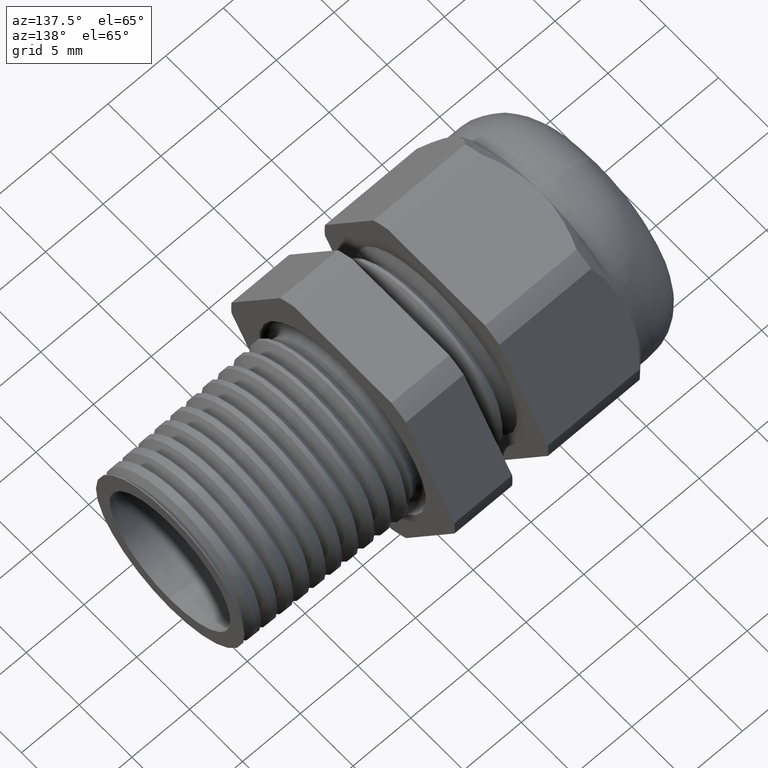
[diagram: clean part render]
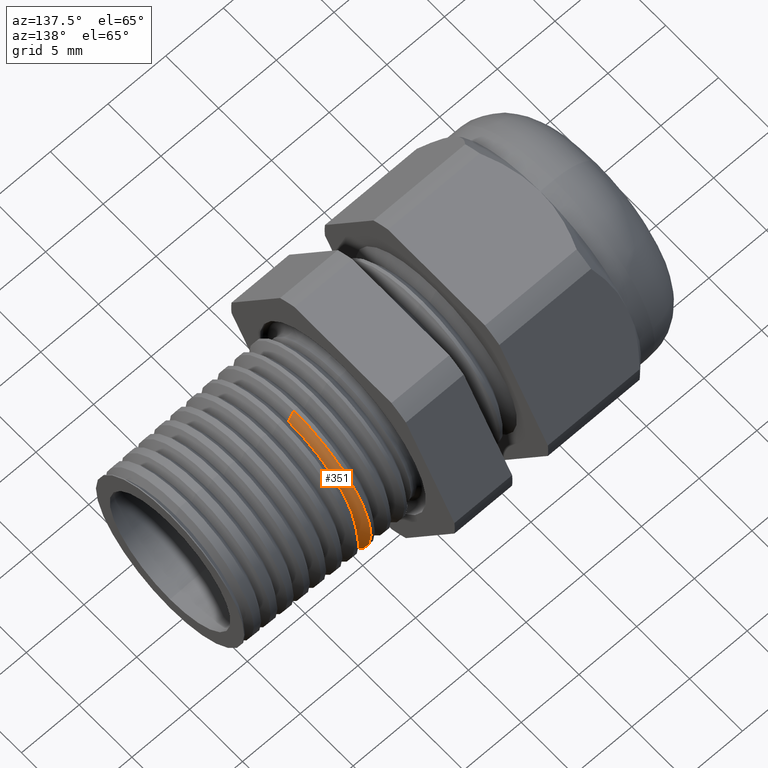
[diagram: same view with one face highlighted and labeled with its STEP entity id]
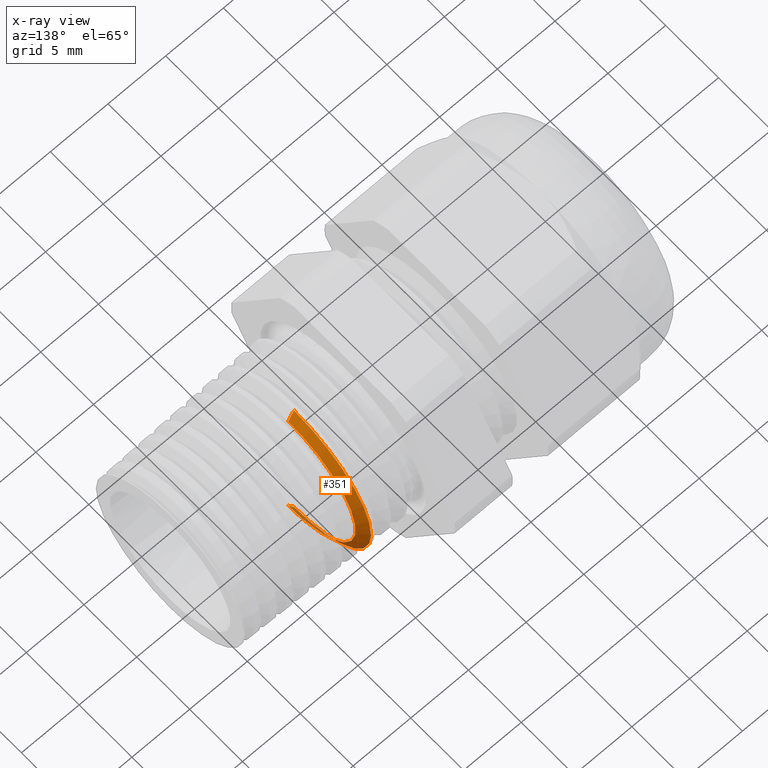
[diagram: x-ray of the same camera — body ghosted, the highlighted face saturated]
A machine part, auxiliary view. The second image highlights one B-rep face of the part: STEP entity #351.
The next image is the same camera in x-ray: the body ghosted, the highlighted face saturated — about 6% of this face is hidden behind the body in this view.
In plain terms, the highlighted conical surface has half-angle 61.5 deg.
Its self-contained STEP definition (entity closure, byte-faithful):
#322 = ORIENTED_EDGE ( 'NONE', *, *, #401, .T. ) ;
#323 = ORIENTED_EDGE ( 'NONE', *, *, #404, .T. ) ;
#324 = VERTEX_POINT ( 'NONE', #1890 ) ;
#325 = ORIENTED_EDGE ( 'NONE', *, *, #326, .F. ) ;
#326 = EDGE_CURVE ( 'NONE', #342, #402, #1889, .T. ) ;
#341 = EDGE_CURVE ( 'NONE', #3731, #342, #1922, .T. ) ;
#342 = VERTEX_POINT ( 'NONE', #1917 ) ;
#351 = ADVANCED_FACE ( 'NONE', ( #1965 ), #1963, .T. ) ;
#352 = EDGE_LOOP ( 'NONE', ( #353, #323, #322, #325 ) ) ;
#353 = ORIENTED_EDGE ( 'NONE', *, *, #341, .F. ) ;
#401 = EDGE_CURVE ( 'NONE', #324, #402, #2052, .T. ) ;
#402 = VERTEX_POINT ( 'NONE', #2047 ) ;
#404 = EDGE_CURVE ( 'NONE', #3731, #324, #2046, .T. ) ;
#1886 = DIRECTION ( 'NONE',  ( -0.4771587602596075700, 0.0000000000000000000, 0.8788171126619658300 ) ) ;
#1887 = VECTOR ( 'NONE', #1886, 39.37007874015748100 ) ;
#1888 = CARTESIAN_POINT ( 'NONE',  ( -0.1449999999999999600, 0.0000000000000000000, 0.2916514333516843100 ) ) ;
#1889 = LINE ( 'NONE', #1888, #1887 ) ;
#1890 = CARTESIAN_POINT ( 'NONE',  ( -0.1426202286626725700, 3.520099361578225400E-017, -0.2872684397871777500 ) ) ;
#1917 = CARTESIAN_POINT ( 'NONE',  ( -0.1229609809054342300, 0.0000000000000000000, 0.2510606096265775600 ) ) ;
#1918 = DIRECTION ( 'NONE',  ( 0.0000000000000000000, 0.0000000000000000000, -1.000000000000000000 ) ) ;
#1919 = DIRECTION ( 'NONE',  ( 1.000000000000000000, 0.0000000000000000000, 0.0000000000000000000 ) ) ;
#1920 = CARTESIAN_POINT ( 'NONE',  ( -0.1229609809054342300, 0.0000000000000000000, 0.0000000000000000000 ) ) ;
#1921 = AXIS2_PLACEMENT_3D ( 'NONE', #1920, #1919, #1918 ) ;
#1922 = CIRCLE ( 'NONE', #1921, 0.2510606096265775600 ) ;
#1959 = DIRECTION ( 'NONE',  ( 0.0000000000000000000, 0.0000000000000000000, 1.000000000000000000 ) ) ;
#1960 = DIRECTION ( 'NONE',  ( -1.000000000000000000, 0.0000000000000000000, 0.0000000000000000000 ) ) ;
#1961 = CARTESIAN_POINT ( 'NONE',  ( -0.1449999999999999600, 0.0000000000000000000, 0.0000000000000000000 ) ) ;
#1962 = AXIS2_PLACEMENT_3D ( 'NONE', #1961, #1960, #1959 ) ;
#1963 = CONICAL_SURFACE ( 'NONE', #1962, 0.2916514333516843100, 1.073377489976513600 ) ;
#1965 = FACE_OUTER_BOUND ( 'NONE', #352, .T. ) ;
#2043 = DIRECTION ( 'NONE',  ( -0.4771587602596075700, 1.076240564057395200E-016, -0.8788171126619658300 ) ) ;
#2044 = VECTOR ( 'NONE', #2043, 39.37007874015748100 ) ;
#2045 = CARTESIAN_POINT ( 'NONE',  ( -0.1449999999999999600, 3.571699943208778300E-017, -0.2916514333516843100 ) ) ;
#2046 = LINE ( 'NONE', #2045, #2044 ) ;
#2047 = CARTESIAN_POINT ( 'NONE',  ( -0.1426202286626725700, 0.0000000000000000000, 0.2872684397871777500 ) ) ;
#2048 = DIRECTION ( 'NONE',  ( 0.0000000000000000000, 0.0000000000000000000, 1.000000000000000000 ) ) ;
#2049 = DIRECTION ( 'NONE',  ( 1.000000000000000000, 0.0000000000000000000, 0.0000000000000000000 ) ) ;
#2050 = CARTESIAN_POINT ( 'NONE',  ( -0.1426202286626725700, 0.0000000000000000000, 0.0000000000000000000 ) ) ;
#2051 = AXIS2_PLACEMENT_3D ( 'NONE', #2050, #2049, #2048 ) ;
#2052 = CIRCLE ( 'NONE', #2051, 0.2872684397871777500 ) ;
#3566 = CARTESIAN_POINT ( 'NONE',  ( -0.1229609809054342300, 3.296314736262964500E-017, -0.2510606096265775600 ) ) ;
#3731 = VERTEX_POINT ( 'NONE', #3566 ) ;